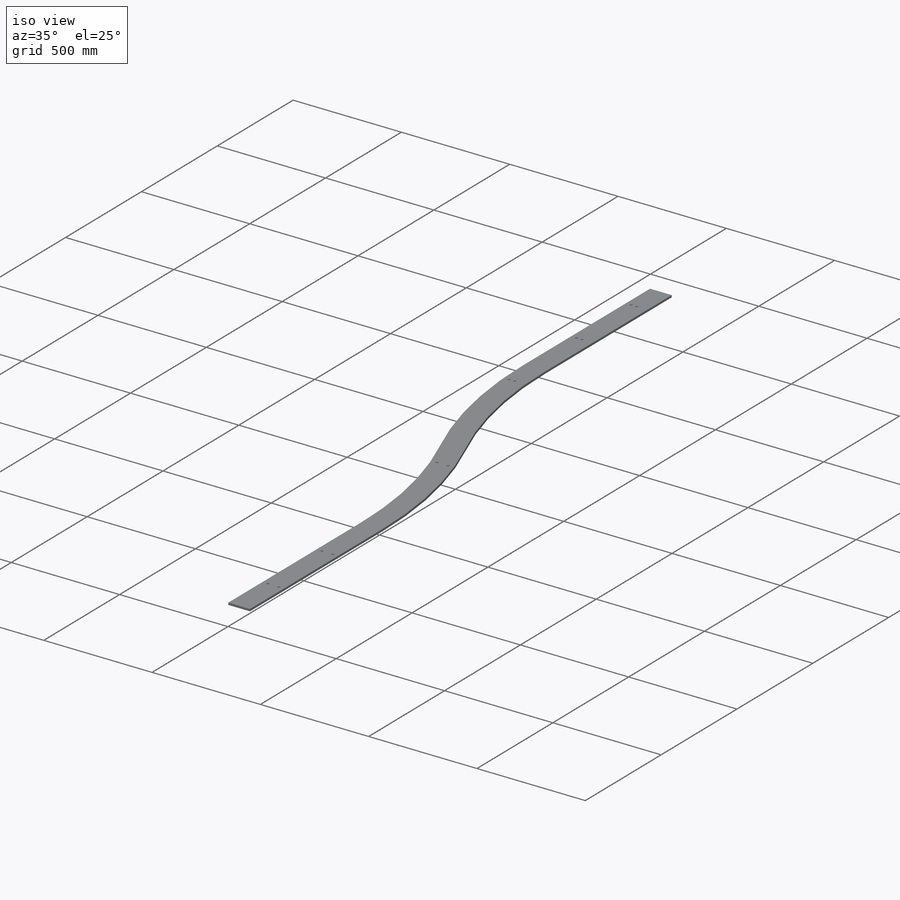
[diagram: iso view]
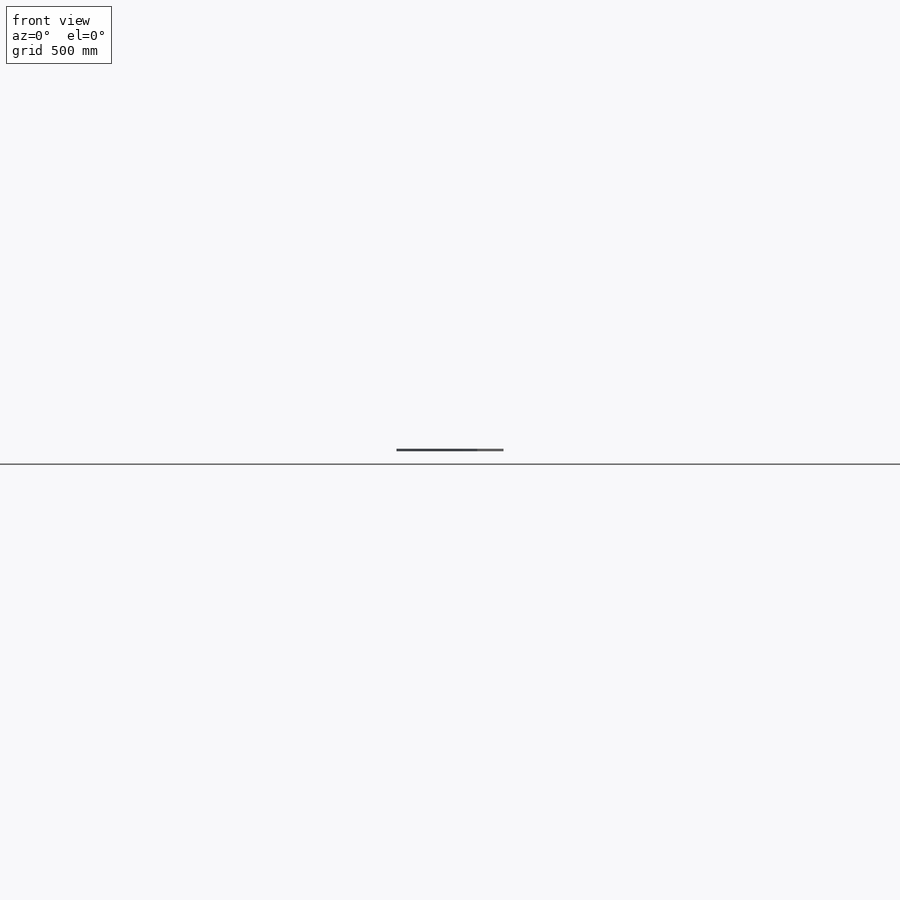
[diagram: front view]
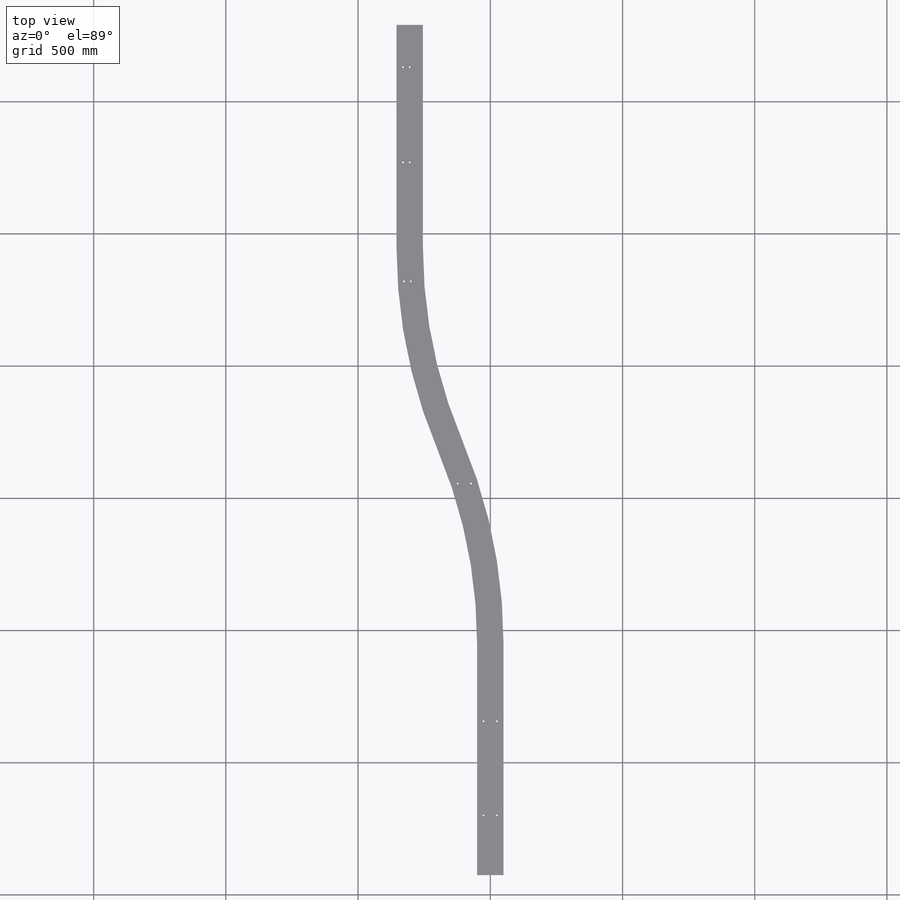
[diagram: top view]
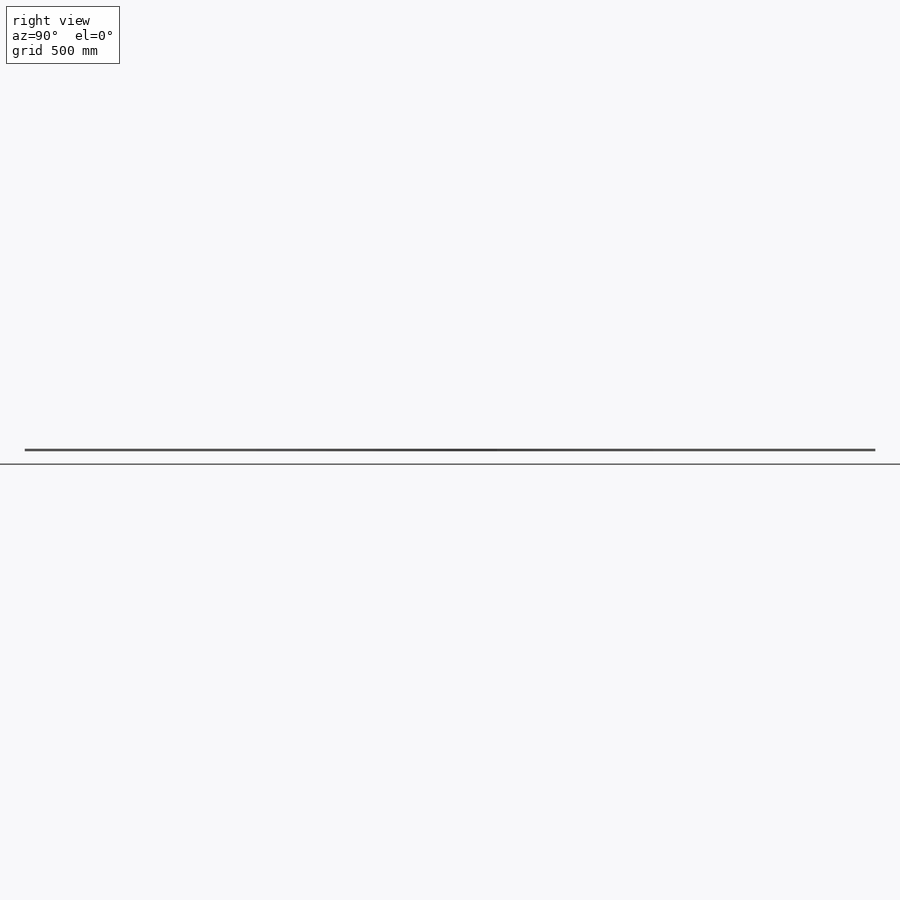
[diagram: right view]
SOLIDWORKS PART (.sldprt)
format: sldprt  version: not decoded by parser v0  size: 336,384 bytes
history: native  units: mm
features: sketch x4, material x1, fillet x1, hole x1 (+11 scaffold rows collapsed)
feature tree (18):
  scaffold x11  (default folders/planes/origin — collapsed)
  material  "6061 Alloy"
  sketch  "Sketch1"  dims[c1.D1=875.9mm c1.D2=1500.0mm c1.D3=840.0mm c1.D4=304.8mm c1.D5=74.1mm c2.D1=9.525mm c2.D5=100.0mm c2.D6=1.0mm c2.D7=5.0mm]
  fillet  "Fillet1"  Radius=1mm
  sketch  "Sketch2"  dims[c1.D1=50.8mm c1.D2=25.4mm c1.D3=50.8mm c1.D4=25.4mm c2.D3=160.0mm c2.D4=520.0mm c2.D5=50.8mm c2.D6=669.186mm c2.D7=970.0mm c2.D8=1735.0mm c2.D9=300.0mm c3.D6=~2633.949989mm c3.D9=2990.0mm]
  hole  "CBORE for 1/4 Socket Head Cap Screw3"  Diameter=6.7564mm Depth=9.525mm
  sketch  "Sketch8"
  sketch  "Sketch7"  dims[hole-wizard template sketch: 42 standard entries collapsed; hole parameters kept: c12.Thru Hole Depth=9.525mm c12.C'Bore Dia.=11.1125mm c12.C'Bore Depth=6.35mm c12.Near C'Sink Dia.=12.3825mm c12.D6=~4.399409mm c12.Near C'Sink Angle=90.0deg c12.Far C'Sink Dia.=8.0264mm c12.D8=~2.963249mm c12.Far C'Sink Angle=90.0deg]
decode coverage: 5 of 6 modeling features carry decoded parameters
note: ~ marks probable driven/reference dimensions
note: suppression state not decoded; provenance and decode notes live in map.json
